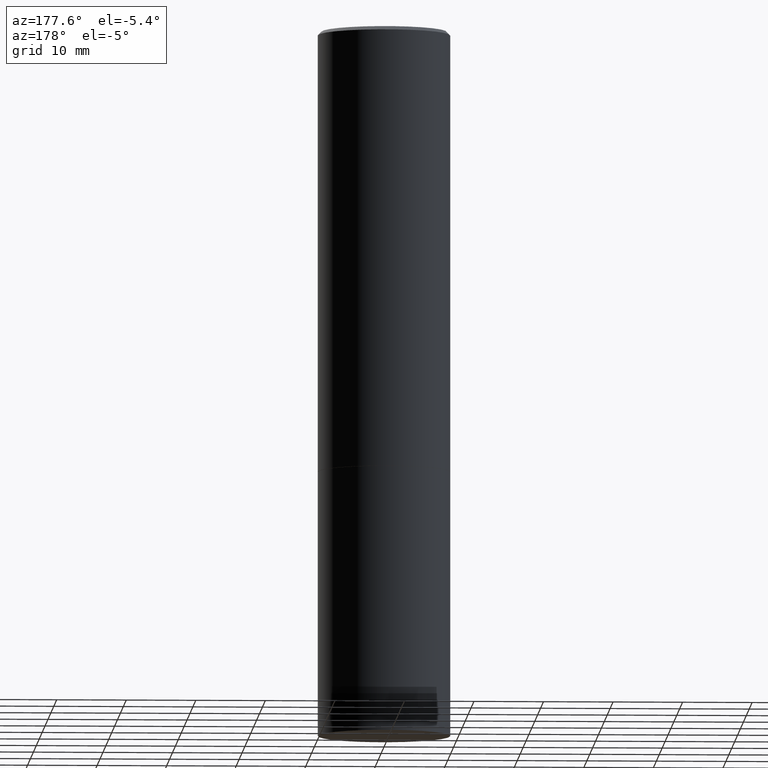
[diagram: clean part render]
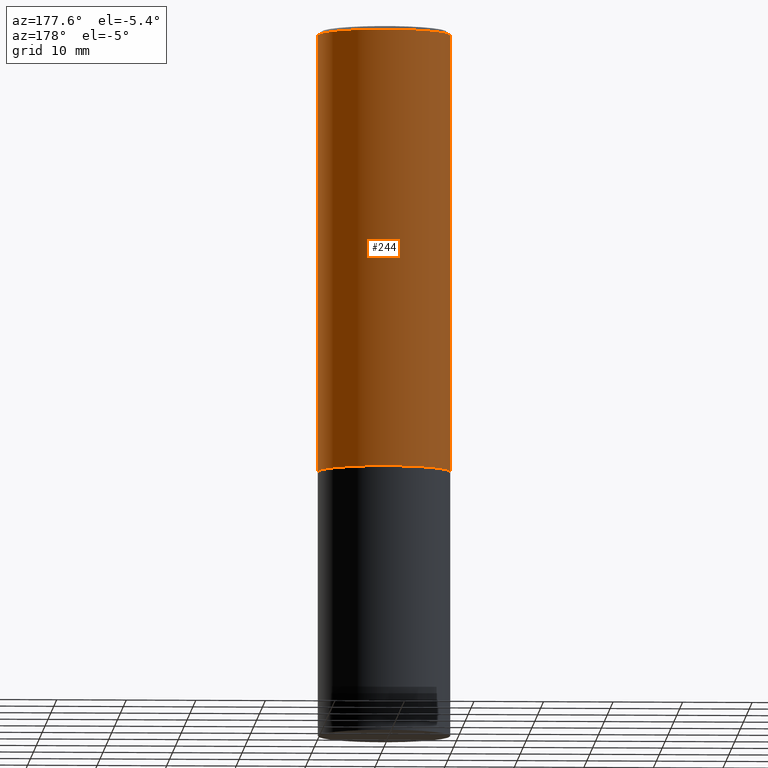
[diagram: same view with one face highlighted and labeled with its STEP entity id]
A machine part, auxiliary view. The second image highlights one B-rep face of the part: STEP entity #244.
In plain terms, the highlighted cylindrical surface (partial cylindrical patch) has radius 9.525 mm, axis along (-0, 0, 1).
Its self-contained STEP definition (entity closure, byte-faithful):
#9 = LINE ( 'NONE', #318, #341 ) ;
#22 = EDGE_CURVE ( 'NONE', #365, #192, #9, .T. ) ;
#30 = EDGE_CURVE ( 'NONE', #121, #365, #383, .T. ) ;
#40 = DIRECTION ( 'NONE',  ( 1.000000000000000000, -6.982962677686264344E-15, 0.000000000000000000 ) ) ;
#47 = EDGE_CURVE ( 'NONE', #121, #120, #345, .T. ) ;
#51 = EDGE_CURVE ( 'NONE', #120, #192, #251, .T. ) ;
#74 = CARTESIAN_POINT ( 'NONE',  ( 0.3749999999999998335, -2.618611004132348439E-15, 1.828566290923475082E-29 ) ) ;
#82 = AXIS2_PLACEMENT_3D ( 'NONE', #151, #328, #115 ) ;
#109 = CYLINDRICAL_SURFACE ( 'NONE', #82, 0.3749999999999998335 ) ;
#115 = DIRECTION ( 'NONE',  ( 1.000000000000000000, -6.982962677686265922E-15, 4.876176775795935793E-29 ) ) ;
#120 = VERTEX_POINT ( 'NONE', #260 ) ;
#121 = VERTEX_POINT ( 'NONE', #214 ) ;
#134 = ORIENTED_EDGE ( 'NONE', *, *, #47, .F. ) ;
#142 = CARTESIAN_POINT ( 'NONE',  ( -0.3749999999999996669, 2.548781377355484352E-15, -0.02000000000000010103 ) ) ;
#151 = CARTESIAN_POINT ( 'NONE',  ( 0.000000000000000000, 0.000000000000000000, 0.000000000000000000 ) ) ;
#170 = VECTOR ( 'NONE', #191, 39.37007874015748143 ) ;
#182 = AXIS2_PLACEMENT_3D ( 'NONE', #347, #219, #40 ) ;
#191 = DIRECTION ( 'NONE',  ( -2.445468806185136877E-29, 3.491481338843145188E-15, 1.000000000000000000 ) ) ;
#192 = VERTEX_POINT ( 'NONE', #142 ) ;
#207 = FACE_OUTER_BOUND ( 'NONE', #279, .T. ) ;
#214 = CARTESIAN_POINT ( 'NONE',  ( 0.3750000000000000555, -1.134382286990137353E-14, -2.499000000000000998 ) ) ;
#219 = DIRECTION ( 'NONE',  ( -2.445468806185136597E-29, 3.491481338843145583E-15, 1.000000000000000000 ) ) ;
#239 = CARTESIAN_POINT ( 'NONE',  ( -0.3749999999999999445, -1.732985487172566723E-15, -2.499000000000000998 ) ) ;
#244 = ADVANCED_FACE ( 'NONE', ( #207 ), #109, .T. ) ;
#251 = CIRCLE ( 'NONE', #308, 0.3749999999999996669 ) ;
#252 = CARTESIAN_POINT ( 'NONE',  ( 4.890937612370298557E-31, -6.982962677686327354E-17, -0.02000000000000010103 ) ) ;
#260 = CARTESIAN_POINT ( 'NONE',  ( 0.3749999999999996669, -2.642516375941185662E-15, -0.02000000000000010103 ) ) ;
#279 = EDGE_LOOP ( 'NONE', ( #364, #375, #348, #134 ) ) ;
#308 = AXIS2_PLACEMENT_3D ( 'NONE', #252, #311, #367 ) ;
#311 = DIRECTION ( 'NONE',  ( -2.445468806185136597E-29, 3.491481338843145583E-15, 1.000000000000000000 ) ) ;
#318 = CARTESIAN_POINT ( 'NONE',  ( -0.3749999999999998335, 2.664535259100374514E-15, -1.844600658845588757E-29 ) ) ;
#328 = DIRECTION ( 'NONE',  ( -2.445468806185136597E-29, 3.491481338843145583E-15, 1.000000000000000000 ) ) ;
#341 = VECTOR ( 'NONE', #369, 39.37007874015748143 ) ;
#345 = LINE ( 'NONE', #74, #170 ) ;
#347 = CARTESIAN_POINT ( 'NONE',  ( 6.111226546656659252E-29, -8.725211865769023513E-15, -2.499000000000000998 ) ) ;
#348 = ORIENTED_EDGE ( 'NONE', *, *, #51, .F. ) ;
#364 = ORIENTED_EDGE ( 'NONE', *, *, #30, .T. ) ;
#365 = VERTEX_POINT ( 'NONE', #239 ) ;
#367 = DIRECTION ( 'NONE',  ( 1.000000000000000000, -6.982962677686266711E-15, 0.000000000000000000 ) ) ;
#369 = DIRECTION ( 'NONE',  ( -2.445468806185136877E-29, 3.491481338843145188E-15, 1.000000000000000000 ) ) ;
#375 = ORIENTED_EDGE ( 'NONE', *, *, #22, .T. ) ;
#383 = CIRCLE ( 'NONE', #182, 0.3750000000000000555 ) ;